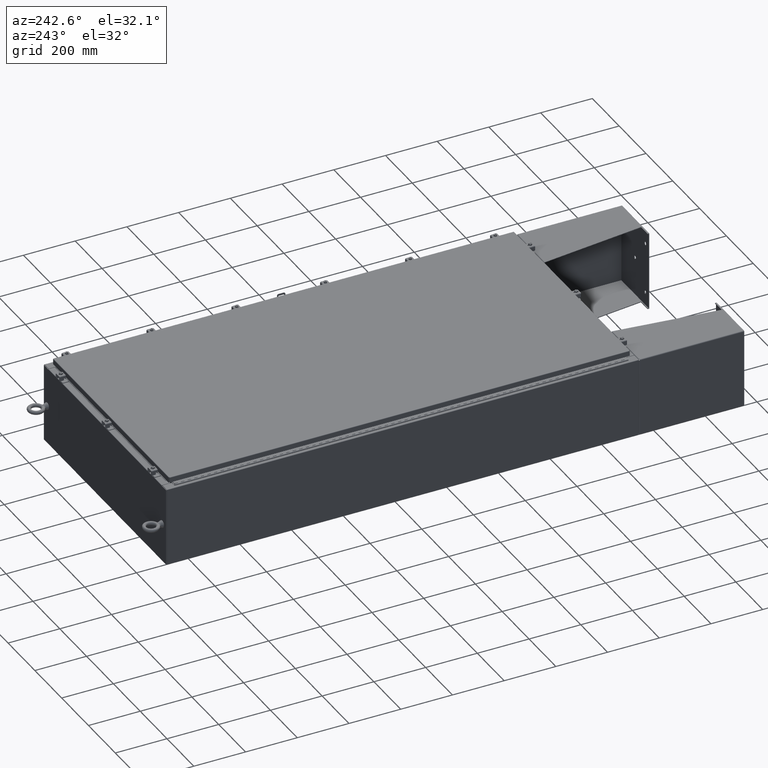
[diagram: clean part render]
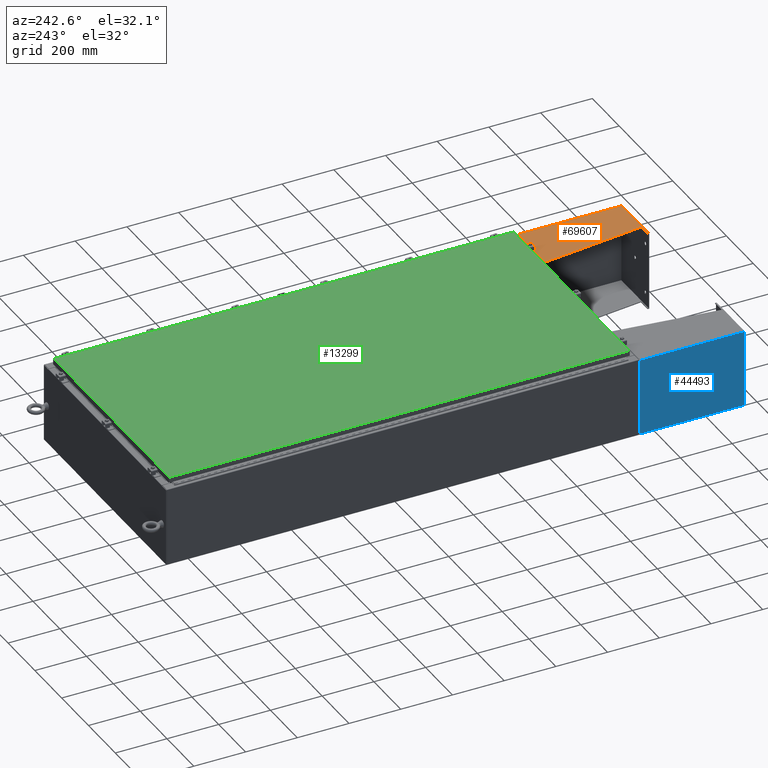
[diagram: same view with three faces highlighted in distinct colors, each labeled with its STEP entity id]
A machine part, auxiliary view with three faces highlighted in distinct colors.
Their STEP definitions:

[orange] entity #69607 — the highlighted planar face has unit normal (-0, -0, -1).
#496 = VECTOR ( 'NONE', #41429, 39.37007874015748100 ) ;
#1062 = DIRECTION ( 'NONE',  ( 3.550958521948298200E-015, 0.0000000000000000000, 1.000000000000000000 ) ) ;
#1207 = CARTESIAN_POINT ( 'NONE',  ( 5.999999999999999100, -7.999999999999999100, 0.03900000000001453000 ) ) ;
#2371 = LINE ( 'NONE', #64871, #496 ) ;
#3974 = CARTESIAN_POINT ( 'NONE',  ( 6.000000000000029300, -7.999999999999999100, 8.001000000000015400 ) ) ;
#6072 = EDGE_CURVE ( 'NONE', #14261, #52300, #41990, .T. ) ;
#8094 = VERTEX_POINT ( 'NONE', #33138 ) ;
#12623 = CARTESIAN_POINT ( 'NONE',  ( 6.000000000000029300, -7.999999999999999100, 8.001000000000015400 ) ) ;
#13293 = VECTOR ( 'NONE', #42408, 39.37007874015748100 ) ;
#14261 = VERTEX_POINT ( 'NONE', #16163 ) ;
#15427 = CARTESIAN_POINT ( 'NONE',  ( 6.000000000000022200, -7.749999999999999100, 6.052216497445950700 ) ) ;
#16163 = CARTESIAN_POINT ( 'NONE',  ( 6.000000000000021300, -7.749999999999999100, 6.052216497445950700 ) ) ;
#16699 = AXIS2_PLACEMENT_3D ( 'NONE', #12623, #36241, #1062 ) ;
#18286 = FACE_OUTER_BOUND ( 'NONE', #74225, .T. ) ;
#19907 = ORIENTED_EDGE ( 'NONE', *, *, #72761, .F. ) ;
#21617 = DIRECTION ( 'NONE',  ( -3.550958521948298200E-015, 0.0000000000000000000, -1.000000000000000000 ) ) ;
#26990 = EDGE_CURVE ( 'NONE', #63696, #14261, #54413, .T. ) ;
#28382 = DIRECTION ( 'NONE',  ( 0.0000000000000000000, -1.000000000000000000, 0.0000000000000000000 ) ) ;
#30264 = ORIENTED_EDGE ( 'NONE', *, *, #50995, .T. ) ;
#30294 = LINE ( 'NONE', #3974, #44309 ) ;
#32416 = EDGE_CURVE ( 'NONE', #8094, #50000, #30294, .T. ) ;
#32899 = CARTESIAN_POINT ( 'NONE',  ( 6.000000000000029300, -7.749999999999999100, 8.001000000000031400 ) ) ;
#33138 = CARTESIAN_POINT ( 'NONE',  ( 6.000000000000029300, -7.999999999999999100, 8.001000000000015400 ) ) ;
#35570 = LINE ( 'NONE', #64014, #69145 ) ;
#36241 = DIRECTION ( 'NONE',  ( -1.000000000000000000, 0.0000000000000000000, 3.550958521948298200E-015 ) ) ;
#36374 = EDGE_CURVE ( 'NONE', #63696, #8094, #35570, .T. ) ;
#36711 = DIRECTION ( 'NONE',  ( -3.550958521948298200E-015, -0.0000000000000000000, -1.000000000000000000 ) ) ;
#37071 = CARTESIAN_POINT ( 'NONE',  ( 6.000000000000013300, 7.857000000000001100, 0.03900000000001453000 ) ) ;
#40089 = VECTOR ( 'NONE', #56845, 39.37007874015748100 ) ;
#41429 = DIRECTION ( 'NONE',  ( 0.0000000000000000000, 0.0000000000000000000, 1.000000000000000000 ) ) ;
#41990 = LINE ( 'NONE', #15427, #40089 ) ;
#42408 = DIRECTION ( 'NONE',  ( -0.0000000000000000000, -1.000000000000000000, 0.0000000000000000000 ) ) ;
#44309 = VECTOR ( 'NONE', #21617, 39.37007874015748100 ) ;
#46024 = ORIENTED_EDGE ( 'NONE', *, *, #32416, .T. ) ;
#48214 = VERTEX_POINT ( 'NONE', #37071 ) ;
#48550 = CARTESIAN_POINT ( 'NONE',  ( 6.000000000000013300, 7.857000000000001100, 8.001000000000013700 ) ) ;
#50000 = VERTEX_POINT ( 'NONE', #58291 ) ;
#50995 = EDGE_CURVE ( 'NONE', #48214, #52300, #2371, .T. ) ;
#52300 = VERTEX_POINT ( 'NONE', #48550 ) ;
#54413 = LINE ( 'NONE', #72382, #68341 ) ;
#56845 = DIRECTION ( 'NONE',  ( 4.399772607369798900E-016, 0.9922942345449394800, 0.1239038017531047700 ) ) ;
#58291 = CARTESIAN_POINT ( 'NONE',  ( 6.000000000000000900, -7.999999999999993800, 0.03899999999999890400 ) ) ;
#59216 = ORIENTED_EDGE ( 'NONE', *, *, #26990, .F. ) ;
#63696 = VERTEX_POINT ( 'NONE', #32899 ) ;
#64014 = CARTESIAN_POINT ( 'NONE',  ( 6.000000000000029300, -7.999999999999999100, 8.001000000000015400 ) ) ;
#64871 = CARTESIAN_POINT ( 'NONE',  ( 6.000000000000013300, 7.857000000000001100, 0.03900000000001561900 ) ) ;
#68341 = VECTOR ( 'NONE', #36711, 39.37007874015748100 ) ;
#69145 = VECTOR ( 'NONE', #28382, 39.37007874015748100 ) ;
#69607 = ADVANCED_FACE ( 'NONE', ( #18286 ), #71904, .F. ) ;
#71904 = PLANE ( 'NONE',  #16699 ) ;
#72382 = CARTESIAN_POINT ( 'NONE',  ( 6.000000000000029300, -7.749999999999999100, 8.001000000000015400 ) ) ;
#72761 = EDGE_CURVE ( 'NONE', #48214, #50000, #74469, .T. ) ;
#74011 = ORIENTED_EDGE ( 'NONE', *, *, #6072, .F. ) ;
#74225 = EDGE_LOOP ( 'NONE', ( #59216, #74486, #46024, #19907, #30264, #74011 ) ) ;
#74469 = LINE ( 'NONE', #1207, #13293 ) ;
#74486 = ORIENTED_EDGE ( 'NONE', *, *, #36374, .T. ) ;

[blue] entity #44493 — the highlighted planar face has unit normal (-1, 0, -0).
#131 = DIRECTION ( 'NONE',  ( 1.000000000000000000, 0.0000000000000000000, 0.0000000000000000000 ) ) ;
#299 = CARTESIAN_POINT ( 'NONE',  ( 5.857000000000000200, -7.999999999999989300, -0.1039999999999998600 ) ) ;
#4523 = LINE ( 'NONE', #65026, #33880 ) ;
#5484 = LINE ( 'NONE', #21534, #50757 ) ;
#5695 = VECTOR ( 'NONE', #43431, 39.37007874015748100 ) ;
#13973 = CARTESIAN_POINT ( 'NONE',  ( -5.857000000000000200, 7.857000000000001100, -0.1039999999999998600 ) ) ;
#17866 = VERTEX_POINT ( 'NONE', #299 ) ;
#21534 = CARTESIAN_POINT ( 'NONE',  ( -5.857000000000000200, -7.999999999999999100, -0.1039999999999998600 ) ) ;
#22058 = EDGE_LOOP ( 'NONE', ( #30976, #43292, #59814, #66585 ) ) ;
#23054 = LINE ( 'NONE', #67361, #5695 ) ;
#24678 = VERTEX_POINT ( 'NONE', #53300 ) ;
#25233 = VERTEX_POINT ( 'NONE', #46202 ) ;
#27463 = DIRECTION ( 'NONE',  ( -0.0000000000000000000, 1.000000000000000000, -0.0000000000000000000 ) ) ;
#27961 = CARTESIAN_POINT ( 'NONE',  ( -5.857000000000000200, -8.000000000000000000, -0.1039999999999998600 ) ) ;
#28177 = PLANE ( 'NONE',  #76448 ) ;
#30976 = ORIENTED_EDGE ( 'NONE', *, *, #49358, .T. ) ;
#33880 = VECTOR ( 'NONE', #131, 39.37007874015748100 ) ;
#40107 = DIRECTION ( 'NONE',  ( -1.000000000000000000, 0.0000000000000000000, -0.0000000000000000000 ) ) ;
#43292 = ORIENTED_EDGE ( 'NONE', *, *, #70961, .T. ) ;
#43431 = DIRECTION ( 'NONE',  ( -0.0000000000000000000, -1.000000000000000000, -0.0000000000000000000 ) ) ;
#44493 = ADVANCED_FACE ( 'NONE', ( #58865 ), #28177, .T. ) ;
#44993 = VECTOR ( 'NONE', #61315, 39.37007874015748100 ) ;
#46202 = CARTESIAN_POINT ( 'NONE',  ( -5.857000000000000200, 7.856999999999998400, -0.1039999999999999000 ) ) ;
#49358 = EDGE_CURVE ( 'NONE', #57921, #25233, #5484, .T. ) ;
#50757 = VECTOR ( 'NONE', #27463, 39.37007874015748100 ) ;
#53300 = CARTESIAN_POINT ( 'NONE',  ( 5.857000000000000200, 7.857000000000001100, -0.1039999999999998600 ) ) ;
#57921 = VERTEX_POINT ( 'NONE', #27961 ) ;
#58865 = FACE_OUTER_BOUND ( 'NONE', #22058, .T. ) ;
#58887 = EDGE_CURVE ( 'NONE', #57921, #17866, #4523, .T. ) ;
#59814 = ORIENTED_EDGE ( 'NONE', *, *, #68278, .T. ) ;
#61315 = DIRECTION ( 'NONE',  ( 1.000000000000000000, 0.0000000000000000000, 0.0000000000000000000 ) ) ;
#62617 = LINE ( 'NONE', #13973, #44993 ) ;
#65026 = CARTESIAN_POINT ( 'NONE',  ( -6.000000000000000900, -7.999999999999999100, -0.1039999999999999800 ) ) ;
#66585 = ORIENTED_EDGE ( 'NONE', *, *, #58887, .F. ) ;
#67361 = CARTESIAN_POINT ( 'NONE',  ( 5.857000000000000200, 8.000000000000001800, -0.1039999999999998600 ) ) ;
#68278 = EDGE_CURVE ( 'NONE', #24678, #17866, #23054, .T. ) ;
#69802 = CARTESIAN_POINT ( 'NONE',  ( 5.999999999999996400, 8.000000000000001800, -0.1039999999999999800 ) ) ;
#70961 = EDGE_CURVE ( 'NONE', #25233, #24678, #62617, .T. ) ;
#75780 = DIRECTION ( 'NONE',  ( 0.0000000000000000000, 0.0000000000000000000, -1.000000000000000000 ) ) ;
#76448 = AXIS2_PLACEMENT_3D ( 'NONE', #69802, #75780, #40107 ) ;

[green] entity #13299 — the highlighted planar face has unit normal (0, 0, -1).
#5281 = CARTESIAN_POINT ( 'NONE',  ( 16.99029999999999800, -35.00630000000000300, -2.048885995248197400E-016 ) ) ;
#6440 = ORIENTED_EDGE ( 'NONE', *, *, #45160, .T. ) ;
#7267 = CARTESIAN_POINT ( 'NONE',  ( -16.99030000000000500, -35.00630000000001000, 1.946441695485787500E-015 ) ) ;
#10690 = DIRECTION ( 'NONE',  ( 1.000000000000000000, -0.0000000000000000000, -0.0000000000000000000 ) ) ;
#11876 = DIRECTION ( 'NONE',  ( -1.000000000000000000, 0.0000000000000000000, -0.0000000000000000000 ) ) ;
#11982 = VERTEX_POINT ( 'NONE', #41026 ) ;
#13299 = ADVANCED_FACE ( 'NONE', ( #28063 ), #26216, .F. ) ;
#14654 = DIRECTION ( 'NONE',  ( 0.0000000000000000000, -1.000000000000000000, 0.0000000000000000000 ) ) ;
#14881 = VECTOR ( 'NONE', #10690, 39.37007874015748100 ) ;
#16548 = CARTESIAN_POINT ( 'NONE',  ( -16.99030000000000500, -35.00630000000001000, 1.946441695485787500E-015 ) ) ;
#18109 = ORIENTED_EDGE ( 'NONE', *, *, #53170, .T. ) ;
#20724 = LINE ( 'NONE', #47356, #68139 ) ;
#26216 = PLANE ( 'NONE',  #70753 ) ;
#27684 = EDGE_CURVE ( 'NONE', #11982, #33561, #20724, .T. ) ;
#28063 = FACE_OUTER_BOUND ( 'NONE', #54414, .T. ) ;
#31020 = LINE ( 'NONE', #50125, #32831 ) ;
#31119 = ORIENTED_EDGE ( 'NONE', *, *, #59597, .T. ) ;
#31703 = LINE ( 'NONE', #5281, #59669 ) ;
#32831 = VECTOR ( 'NONE', #14654, 39.37007874015748100 ) ;
#33561 = VERTEX_POINT ( 'NONE', #50766 ) ;
#40792 = DIRECTION ( 'NONE',  ( 0.0000000000000000000, 1.000000000000000000, 0.0000000000000000000 ) ) ;
#41026 = CARTESIAN_POINT ( 'NONE',  ( 16.99029999999999800, 35.00630000000001000, 1.946441695485787500E-015 ) ) ;
#41346 = CARTESIAN_POINT ( 'NONE',  ( 0.0000000000000000000, 0.0000000000000000000, 0.0000000000000000000 ) ) ;
#42049 = VERTEX_POINT ( 'NONE', #49333 ) ;
#45160 = EDGE_CURVE ( 'NONE', #42049, #11982, #31703, .T. ) ;
#47356 = CARTESIAN_POINT ( 'NONE',  ( 16.99029999999999800, 35.00630000000001000, 1.946441695485787500E-015 ) ) ;
#48210 = LINE ( 'NONE', #16548, #14881 ) ;
#49333 = CARTESIAN_POINT ( 'NONE',  ( 16.99029999999999800, -35.00630000000000300, -2.048885995248197400E-016 ) ) ;
#50125 = CARTESIAN_POINT ( 'NONE',  ( -16.99029999999998700, 35.00630000000000300, 4.166068190338001500E-015 ) ) ;
#50766 = CARTESIAN_POINT ( 'NONE',  ( -16.99029999999998700, 35.00629999999999600, 4.166068190338001500E-015 ) ) ;
#53170 = EDGE_CURVE ( 'NONE', #67044, #42049, #48210, .T. ) ;
#54414 = EDGE_LOOP ( 'NONE', ( #18109, #6440, #73104, #31119 ) ) ;
#59597 = EDGE_CURVE ( 'NONE', #33561, #67044, #31020, .T. ) ;
#59669 = VECTOR ( 'NONE', #40792, 39.37007874015748100 ) ;
#61165 = DIRECTION ( 'NONE',  ( 0.0000000000000000000, 0.0000000000000000000, -1.000000000000000000 ) ) ;
#65019 = DIRECTION ( 'NONE',  ( -1.000000000000000000, -0.0000000000000000000, -0.0000000000000000000 ) ) ;
#67044 = VERTEX_POINT ( 'NONE', #7267 ) ;
#68139 = VECTOR ( 'NONE', #65019, 39.37007874015748100 ) ;
#70753 = AXIS2_PLACEMENT_3D ( 'NONE', #41346, #61165, #11876 ) ;
#73104 = ORIENTED_EDGE ( 'NONE', *, *, #27684, .T. ) ;